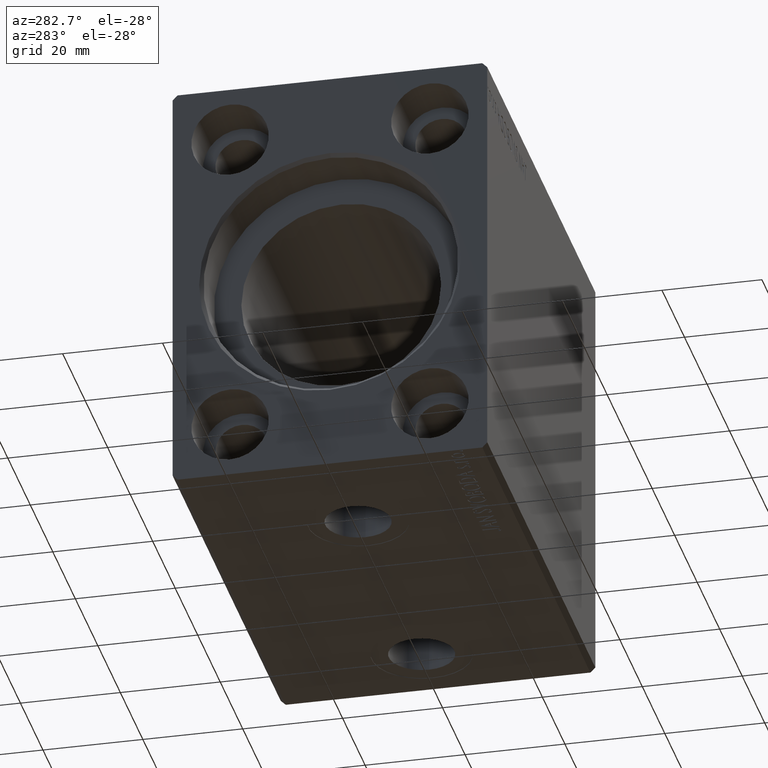
[diagram: clean part render]
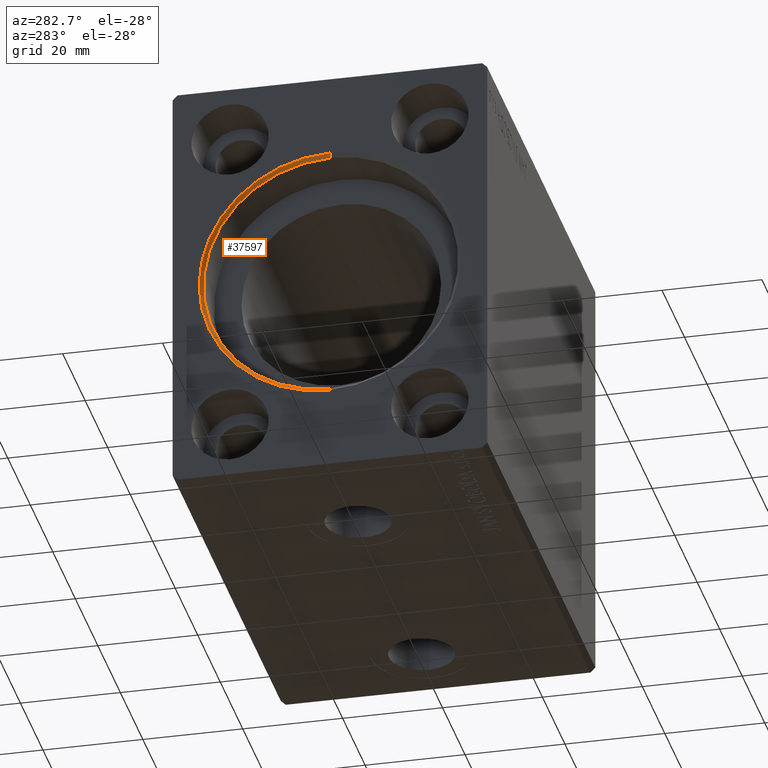
[diagram: same view with one face highlighted and labeled with its STEP entity id]
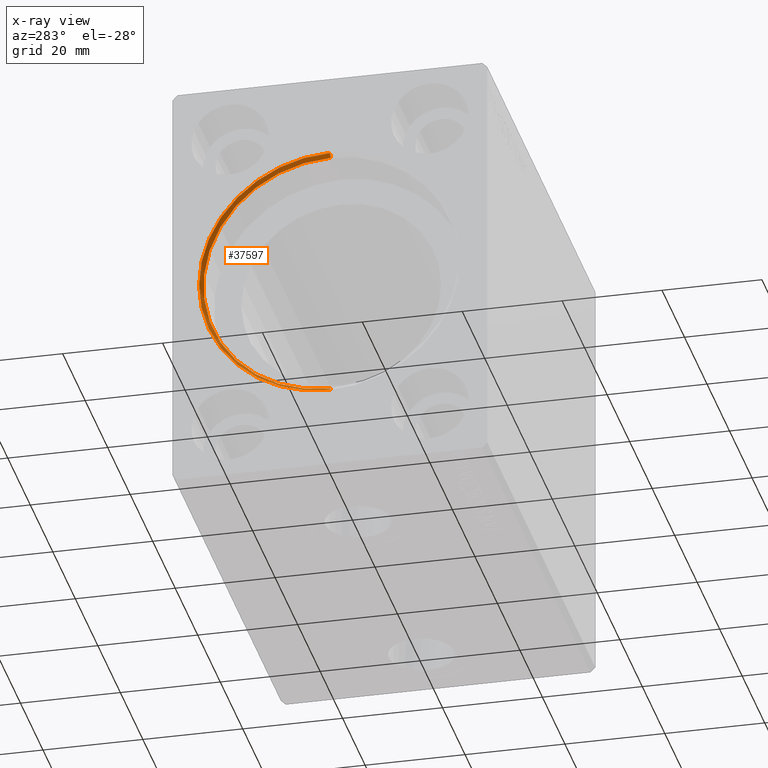
[diagram: x-ray of the same camera — body ghosted, the highlighted face saturated]
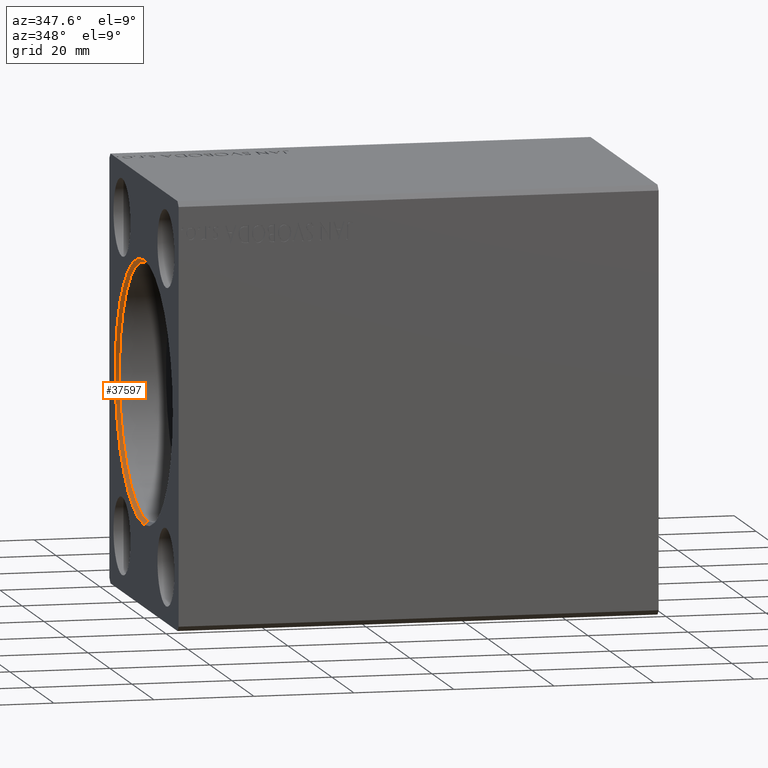
[diagram: same view with one face highlighted and labeled with its STEP entity id]
A machine part, auxiliary view. The second image highlights one B-rep face of the part: STEP entity #37597.
The next image is the same camera in x-ray: the body ghosted, the highlighted face saturated — about 0% of this face is hidden behind the body in this view.
A second angle (auxiliary view) of the same face is appended — the face is thin or edge-on in the first view.
In plain terms, the highlighted conical surface has half-angle 45 deg.
Its self-contained STEP definition (entity closure, byte-faithful):
#912 = DIRECTION ( 'NONE',  ( -1.000000000000000000, 0.000000000000000000, 0.000000000000000000 ) ) ;
#3376 = LINE ( 'NONE', #33228, #19059 ) ;
#3495 = VECTOR ( 'NONE', #35030, 1000.000000000000000 ) ;
#4710 = DIRECTION ( 'NONE',  ( -1.000000000000000000, 0.000000000000000000, 0.000000000000000000 ) ) ;
#6598 = DIRECTION ( 'NONE',  ( -0.7071067811865422437, 8.659560562354996953E-17, -0.7071067811865527908 ) ) ;
#6841 = CARTESIAN_POINT ( 'NONE',  ( 0.6999999999999784173, 3.122849337825750222E-15, -25.50000000000000000 ) ) ;
#7481 = EDGE_CURVE ( 'NONE', #28736, #30735, #3376, .T. ) ;
#8815 = CARTESIAN_POINT ( 'NONE',  ( 0.6999999999999784173, 0.000000000000000000, 25.50000000000000000 ) ) ;
#8825 = CARTESIAN_POINT ( 'NONE',  ( 0.000000000000000000, 3.208574613766063722E-15, -26.19999999999998863 ) ) ;
#8881 = CIRCLE ( 'NONE', #20513, 26.19999999999998863 ) ;
#10023 = ORIENTED_EDGE ( 'NONE', *, *, #14008, .T. ) ;
#10474 = DIRECTION ( 'NONE',  ( 0.000000000000000000, 0.000000000000000000, -1.000000000000000000 ) ) ;
#12694 = EDGE_CURVE ( 'NONE', #30735, #15859, #8881, .T. ) ;
#14008 = EDGE_CURVE ( 'NONE', #16691, #15859, #41681, .T. ) ;
#14237 = CARTESIAN_POINT ( 'NONE',  ( 0.6999999999999784173, 0.000000000000000000, 25.50000000000000000 ) ) ;
#15859 = VERTEX_POINT ( 'NONE', #37657 ) ;
#16095 = CIRCLE ( 'NONE', #33915, 25.50000000000000000 ) ;
#16691 = VERTEX_POINT ( 'NONE', #14237 ) ;
#16830 = AXIS2_PLACEMENT_3D ( 'NONE', #34141, #4710, #17813 ) ;
#16905 = ORIENTED_EDGE ( 'NONE', *, *, #12694, .F. ) ;
#17231 = CARTESIAN_POINT ( 'NONE',  ( 0.6999999999999784173, 0.000000000000000000, 0.000000000000000000 ) ) ;
#17813 = DIRECTION ( 'NONE',  ( 0.000000000000000000, 0.000000000000000000, 1.000000000000000000 ) ) ;
#19059 = VECTOR ( 'NONE', #6598, 1000.000000000000000 ) ;
#19244 = EDGE_LOOP ( 'NONE', ( #38503, #38316, #10023, #16905 ) ) ;
#20513 = AXIS2_PLACEMENT_3D ( 'NONE', #36485, #39914, #10474 ) ;
#20873 = DIRECTION ( 'NONE',  ( 0.000000000000000000, 0.000000000000000000, -1.000000000000000000 ) ) ;
#28736 = VERTEX_POINT ( 'NONE', #6841 ) ;
#29176 = CONICAL_SURFACE ( 'NONE', #16830, 25.50000000000000000, 0.7853981633974557175 ) ;
#30735 = VERTEX_POINT ( 'NONE', #8825 ) ;
#33228 = CARTESIAN_POINT ( 'NONE',  ( 0.6999999999999784173, 3.122849337825750222E-15, -25.50000000000000000 ) ) ;
#33915 = AXIS2_PLACEMENT_3D ( 'NONE', #17231, #912, #20873 ) ;
#34141 = CARTESIAN_POINT ( 'NONE',  ( 0.6999999999999784173, 0.000000000000000000, 0.000000000000000000 ) ) ;
#35004 = EDGE_CURVE ( 'NONE', #16691, #28736, #16095, .T. ) ;
#35030 = DIRECTION ( 'NONE',  ( -0.7071067811865422437, 0.000000000000000000, 0.7071067811865527908 ) ) ;
#36485 = CARTESIAN_POINT ( 'NONE',  ( 0.000000000000000000, 0.000000000000000000, 0.000000000000000000 ) ) ;
#37597 = ADVANCED_FACE ( 'NONE', ( #38428 ), #29176, .F. ) ;
#37657 = CARTESIAN_POINT ( 'NONE',  ( 0.000000000000000000, 0.000000000000000000, 26.19999999999998863 ) ) ;
#38316 = ORIENTED_EDGE ( 'NONE', *, *, #35004, .F. ) ;
#38428 = FACE_OUTER_BOUND ( 'NONE', #19244, .T. ) ;
#38503 = ORIENTED_EDGE ( 'NONE', *, *, #7481, .F. ) ;
#39914 = DIRECTION ( 'NONE',  ( 1.000000000000000000, 0.000000000000000000, 0.000000000000000000 ) ) ;
#41681 = LINE ( 'NONE', #8815, #3495 ) ;